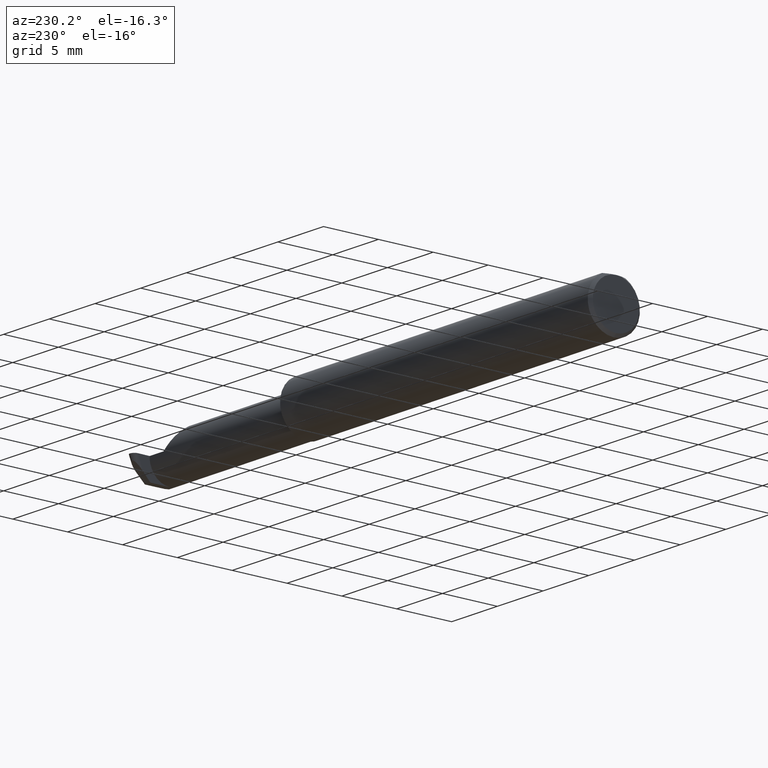
[diagram: clean part render]
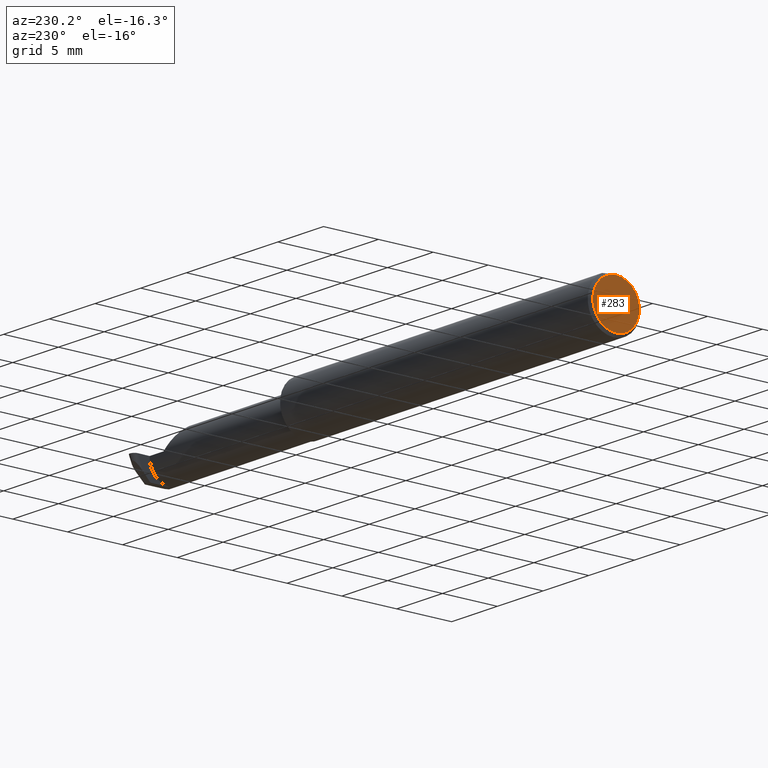
[diagram: same view with one face highlighted and labeled with its STEP entity id]
A machine part, auxiliary view. The second image highlights one B-rep face of the part: STEP entity #283.
In plain terms, the highlighted planar face has unit normal (1, 0, 0).
Its self-contained STEP definition (entity closure, byte-faithful):
#1 = EDGE_CURVE ( 'NONE', #400, #269, #553, .T. ) ;
#41 = EDGE_CURVE ( 'NONE', #269, #400, #783, .T. ) ;
#57 = DIRECTION ( 'NONE',  ( 0.000000000000000000, 0.000000000000000000, -1.000000000000000000 ) ) ;
#82 = DIRECTION ( 'NONE',  ( 0.000000000000000000, 0.000000000000000000, -1.000000000000000000 ) ) ;
#190 = DIRECTION ( 'NONE',  ( -1.000000000000000000, -0.000000000000000000, -0.000000000000000000 ) ) ;
#221 = AXIS2_PLACEMENT_3D ( 'NONE', #654, #190, #57 ) ;
#225 = AXIS2_PLACEMENT_3D ( 'NONE', #652, #703, #82 ) ;
#238 = DIRECTION ( 'NONE',  ( 0.000000000000000000, 0.000000000000000000, -1.000000000000000000 ) ) ;
#269 = VERTEX_POINT ( 'NONE', #393 ) ;
#283 = ADVANCED_FACE ( 'NONE', ( #646 ), #330, .F. ) ;
#284 = AXIS2_PLACEMENT_3D ( 'NONE', #483, #601, #238 ) ;
#300 = ORIENTED_EDGE ( 'NONE', *, *, #41, .T. ) ;
#312 = EDGE_LOOP ( 'NONE', ( #421, #300 ) ) ;
#330 = PLANE ( 'NONE',  #225 ) ;
#393 = CARTESIAN_POINT ( 'NONE',  ( 0.000000000000000000, 0.000000000000000000, -0.08360000000000017417 ) ) ;
#400 = VERTEX_POINT ( 'NONE', #406 ) ;
#406 = CARTESIAN_POINT ( 'NONE',  ( 0.000000000000000000, 0.000000000000000000, 0.08359999999999991049 ) ) ;
#421 = ORIENTED_EDGE ( 'NONE', *, *, #1, .T. ) ;
#483 = CARTESIAN_POINT ( 'NONE',  ( 0.000000000000000000, 0.000000000000000000, 0.000000000000000000 ) ) ;
#553 = CIRCLE ( 'NONE', #221, 0.08360000000000017417 ) ;
#601 = DIRECTION ( 'NONE',  ( -1.000000000000000000, -0.000000000000000000, -0.000000000000000000 ) ) ;
#646 = FACE_OUTER_BOUND ( 'NONE', #312, .T. ) ;
#652 = CARTESIAN_POINT ( 'NONE',  ( 0.000000000000000000, 0.000000000000000000, 0.000000000000000000 ) ) ;
#654 = CARTESIAN_POINT ( 'NONE',  ( 0.000000000000000000, 0.000000000000000000, 0.000000000000000000 ) ) ;
#703 = DIRECTION ( 'NONE',  ( 1.000000000000000000, 0.000000000000000000, 0.000000000000000000 ) ) ;
#783 = CIRCLE ( 'NONE', #284, 0.08360000000000017417 ) ;